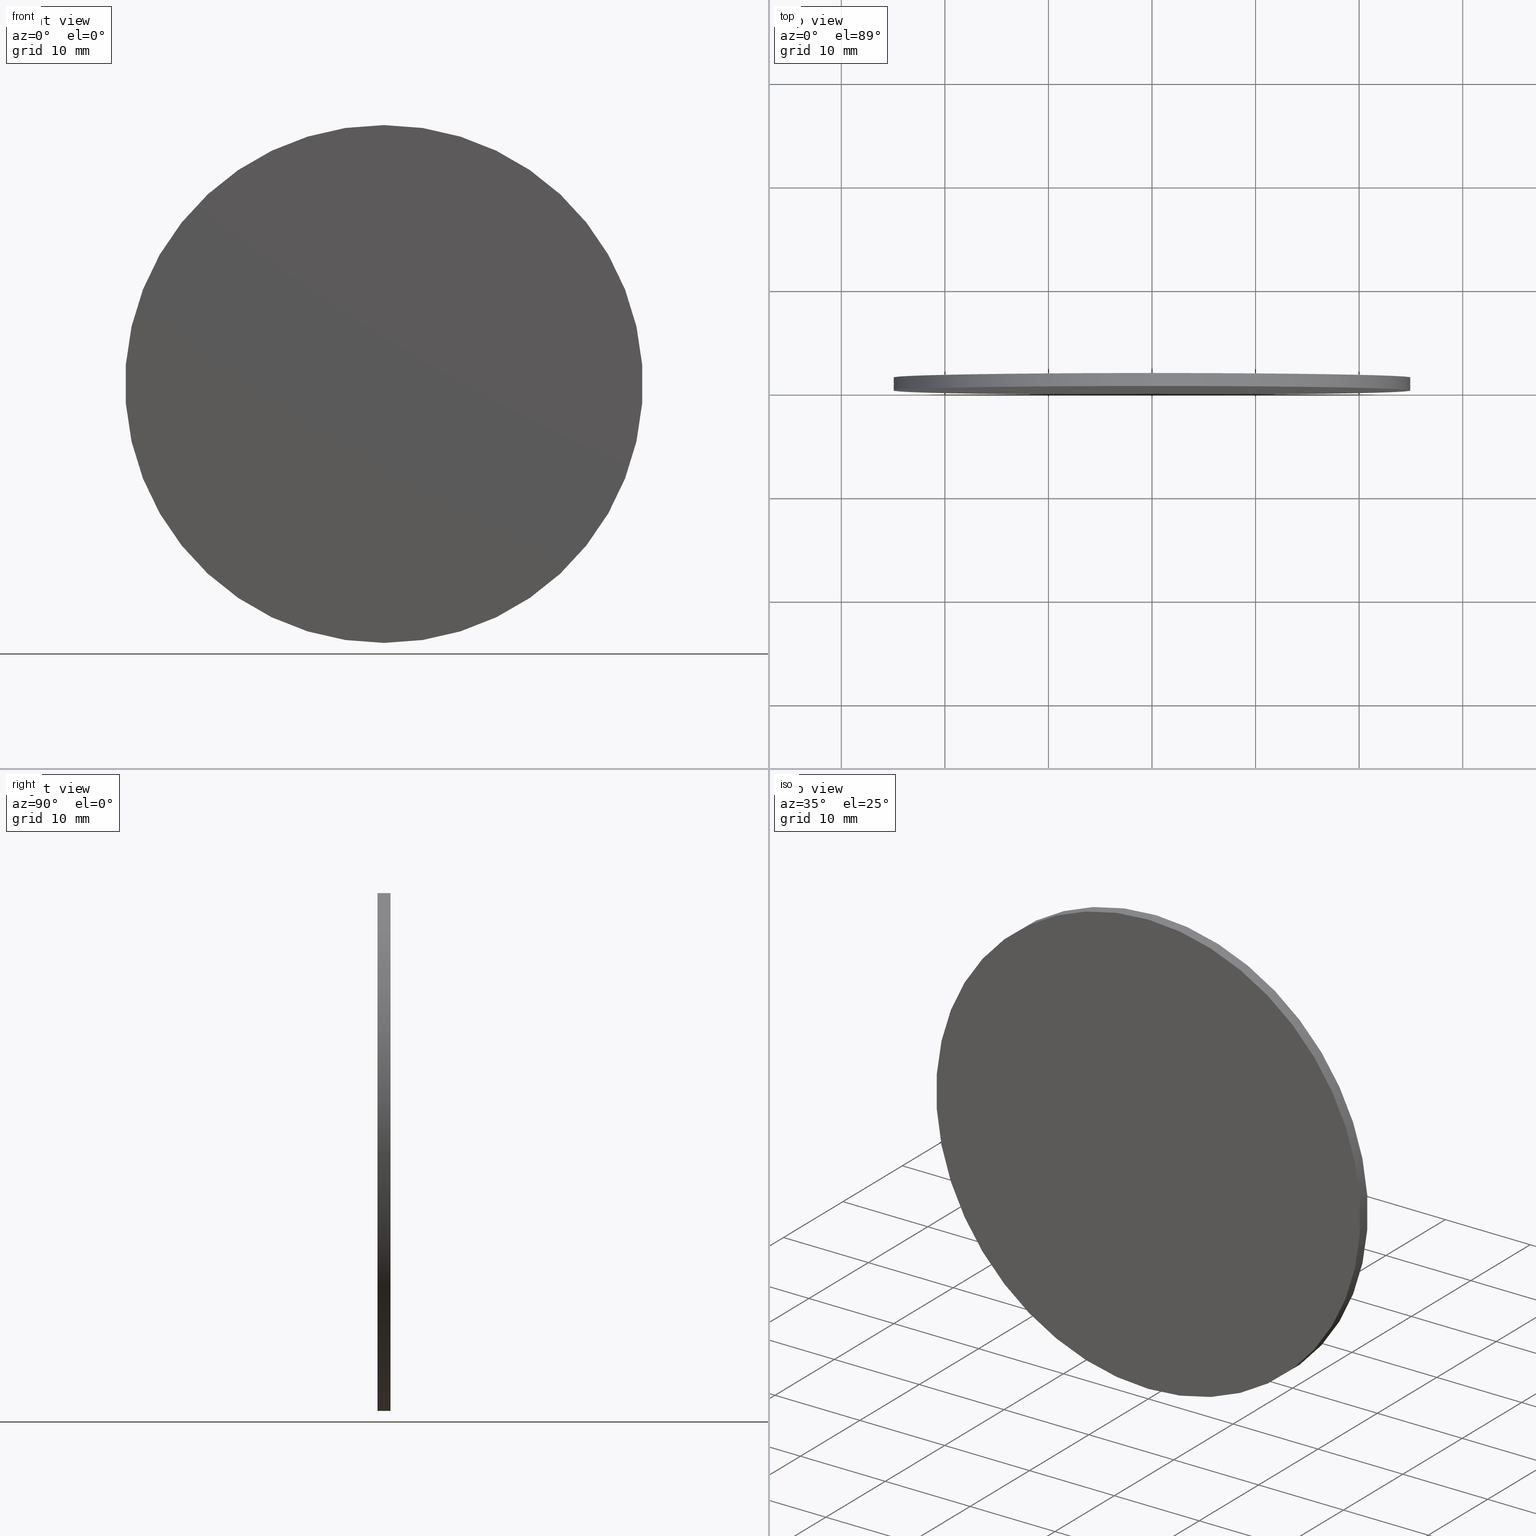
[diagram: canonical four-view strip — front | top / right | iso, engineering-drawing reading convention]
A machine part, canonical four-view strip (front | top / right | iso — engineering-drawing reading convention). The complete STEP part file that produces these views, byte-faithful:
ISO-10303-21;
HEADER;
FILE_DESCRIPTION (( 'STEP AP214' ),
    '1' );
FILE_NAME ('248605.STEP',
    '2019-08-06T05:39:37',
    ( 'user' ),
    ( '΢���й�' ),
    'SwSTEP 2.0',
    'SolidWorks 2016',
    '' );
FILE_SCHEMA (( 'AUTOMOTIVE_DESIGN' ));
ENDSEC;

DATA;
#1 = APPLICATION_CONTEXT ( 'automotive_design' ) ;
#2 = AXIS2_PLACEMENT_3D ( 'NONE', #130, #57, #34 ) ;
#3 = ADVANCED_FACE ( 'NONE', ( #84 ), #107, .T. ) ;
#4 = EDGE_CURVE ( 'NONE', #11, #16, #99, .T. ) ;
#5 = SURFACE_STYLE_FILL_AREA ( #21 ) ;
#6 = PLANE ( 'NONE',  #136 ) ;
#7 = VECTOR ( 'NONE', #109, 1000.000000000000000 ) ;
#8 = PRODUCT_DEFINITION_FORMATION_WITH_SPECIFIED_SOURCE ( '�κ�', '', #47, .NOT_KNOWN. ) ;
#9 = DIRECTION ( 'NONE',  ( 0.0000000000000000000, 0.0000000000000000000, -1.000000000000000000 ) ) ;
#10 = DIRECTION ( 'NONE',  ( 0.0000000000000000000, 0.0000000000000000000, 1.000000000000000000 ) ) ;
#11 = VERTEX_POINT ( 'NONE', #137 ) ;
#12 = AXIS2_PLACEMENT_3D ( 'NONE', #52, #44, #66 ) ;
#13 = CIRCLE ( 'NONE', #14, 25.00000000000000000 ) ;
#14 = AXIS2_PLACEMENT_3D ( 'NONE', #110, #114, #129 ) ;
#15 =( LENGTH_UNIT ( ) NAMED_UNIT ( * ) SI_UNIT ( .MILLI., .METRE. ) );
#16 = VERTEX_POINT ( 'NONE', #30 ) ;
#17 = PRODUCT_RELATED_PRODUCT_CATEGORY ( 'part', '', ( #47 ) ) ;
#18 = PRODUCT_DEFINITION_SHAPE ( 'NONE', 'NONE',  #39 ) ;
#19 = ORIENTED_EDGE ( 'NONE', *, *, #105, .T. ) ;
#20 = ADVANCED_FACE ( 'NONE', ( #82 ), #6, .F. ) ;
#21 = FILL_AREA_STYLE ('',( #90 ) ) ;
#22 = PRODUCT_CONTEXT ( 'NONE', #1, 'mechanical' ) ;
#23 = PLANE ( 'NONE',  #2 ) ;
#24 = MECHANICAL_DESIGN_GEOMETRIC_PRESENTATION_REPRESENTATION (  '', ( #60 ), #123 ) ;
#25 = SURFACE_SIDE_STYLE ('',( #5 ) ) ;
#26 = EDGE_CURVE ( 'NONE', #67, #48, #119, .T. ) ;
#27 = ORIENTED_EDGE ( 'NONE', *, *, #26, .T. ) ;
#28 = MECHANICAL_DESIGN_GEOMETRIC_PRESENTATION_REPRESENTATION (  '', ( #74 ), #45 ) ;
#29 = ADVANCED_FACE ( 'NONE', ( #77 ), #108, .T. ) ;
#30 = CARTESIAN_POINT ( 'NONE',  ( 3.061616997868383000E-015, 0.0000000000000000000, 25.00000000000000000 ) ) ;
#31 = SURFACE_STYLE_FILL_AREA ( #138 ) ;
#32 = DIRECTION ( 'NONE',  ( 0.0000000000000000000, 0.0000000000000000000, -1.000000000000000000 ) ) ;
#33 =( NAMED_UNIT ( * ) PLANE_ANGLE_UNIT ( ) SI_UNIT ( $, .RADIAN. ) );
#34 = DIRECTION ( 'NONE',  ( 0.0000000000000000000, -0.0000000000000000000, 1.000000000000000000 ) ) ;
#35 = VECTOR ( 'NONE', #50, 1000.000000000000000 ) ;
#36 =( NAMED_UNIT ( * ) SI_UNIT ( $, .STERADIAN. ) SOLID_ANGLE_UNIT ( ) );
#37 =( GEOMETRIC_REPRESENTATION_CONTEXT ( 3 ) GLOBAL_UNCERTAINTY_ASSIGNED_CONTEXT ( ( #86 ) ) GLOBAL_UNIT_ASSIGNED_CONTEXT ( ( #15, #58, #61 ) ) REPRESENTATION_CONTEXT ( 'NONE', 'WORKASPACE' ) );
#38 = CARTESIAN_POINT ( 'NONE',  ( 0.0000000000000000000, 0.0000000000000000000, -25.00000000000000000 ) ) ;
#39 = PRODUCT_DEFINITION ( 'δ֪', '', #8, #75 ) ;
#40 = EDGE_LOOP ( 'NONE', ( #42, #125 ) ) ;
#41 =( NAMED_UNIT ( * ) PLANE_ANGLE_UNIT ( ) SI_UNIT ( $, .RADIAN. ) );
#42 = ORIENTED_EDGE ( 'NONE', *, *, #105, .F. ) ;
#43 = DIRECTION ( 'NONE',  ( 0.0000000000000000000, 0.0000000000000000000, 1.000000000000000000 ) ) ;
#44 = DIRECTION ( 'NONE',  ( 0.0000000000000000000, 1.000000000000000000, 0.0000000000000000000 ) ) ;
#45 =( GEOMETRIC_REPRESENTATION_CONTEXT ( 3 ) GLOBAL_UNCERTAINTY_ASSIGNED_CONTEXT ( ( #116 ) ) GLOBAL_UNIT_ASSIGNED_CONTEXT ( ( #53, #33, #36 ) ) REPRESENTATION_CONTEXT ( 'NONE', 'WORKASPACE' ) );
#46 = ORIENTED_EDGE ( 'NONE', *, *, #92, .T. ) ;
#47 = PRODUCT ( '248605', '248605', '', ( #22 ) ) ;
#48 = VERTEX_POINT ( 'NONE', #38 ) ;
#49 = CLOSED_SHELL ( 'NONE', ( #3, #29, #122, #20 ) ) ;
#50 = DIRECTION ( 'NONE',  ( -0.0000000000000000000, -1.000000000000000000, -0.0000000000000000000 ) ) ;
#51 = APPLICATION_CONTEXT ( 'automotive_design' ) ;
#52 = CARTESIAN_POINT ( 'NONE',  ( 0.0000000000000000000, 1.250000000000000000, 0.0000000000000000000 ) ) ;
#53 =( LENGTH_UNIT ( ) NAMED_UNIT ( * ) SI_UNIT ( .MILLI., .METRE. ) );
#54 = SURFACE_STYLE_USAGE ( .BOTH. , #25 ) ;
#55 = CARTESIAN_POINT ( 'NONE',  ( 0.0000000000000000000, 0.0000000000000000000, 0.0000000000000000000 ) ) ;
#56 = ORIENTED_EDGE ( 'NONE', *, *, #68, .T. ) ;
#57 = DIRECTION ( 'NONE',  ( 0.0000000000000000000, 1.000000000000000000, 0.0000000000000000000 ) ) ;
#58 =( NAMED_UNIT ( * ) PLANE_ANGLE_UNIT ( ) SI_UNIT ( $, .RADIAN. ) );
#59 = CARTESIAN_POINT ( 'NONE',  ( 3.061616997868383000E-015, 1.250000000000000000, 25.00000000000000000 ) ) ;
#60 = STYLED_ITEM ( 'NONE', ( #96 ), #102 ) ;
#61 =( NAMED_UNIT ( * ) SI_UNIT ( $, .STERADIAN. ) SOLID_ANGLE_UNIT ( ) );
#62 = AXIS2_PLACEMENT_3D ( 'NONE', #55, #10, #78 ) ;
#63 = CIRCLE ( 'NONE', #80, 25.00000000000000000 ) ;
#64 = SURFACE_STYLE_USAGE ( .BOTH. , #98 ) ;
#65 = COLOUR_RGB ( '',1.000000000000000000, 1.000000000000000000, 1.000000000000000000 ) ;
#66 = DIRECTION ( 'NONE',  ( 0.0000000000000000000, 0.0000000000000000000, 1.000000000000000000 ) ) ;
#67 = VERTEX_POINT ( 'NONE', #126 ) ;
#68 = EDGE_CURVE ( 'NONE', #16, #48, #97, .T. ) ;
#69 = AXIS2_PLACEMENT_3D ( 'NONE', #120, #118, #9 ) ;
#70 = EDGE_LOOP ( 'NONE', ( #72, #46 ) ) ;
#71 = APPLICATION_PROTOCOL_DEFINITION ( 'draft international standard', 'automotive_design', 1998, #51 ) ;
#72 = ORIENTED_EDGE ( 'NONE', *, *, #115, .T. ) ;
#73 = DIRECTION ( 'NONE',  ( -0.0000000000000000000, -1.000000000000000000, -0.0000000000000000000 ) ) ;
#74 = STYLED_ITEM ( 'NONE', ( #139 ), #134 ) ;
#75 = PRODUCT_DEFINITION_CONTEXT ( 'detailed design', #51, 'design' ) ;
#76 = UNCERTAINTY_MEASURE_WITH_UNIT (LENGTH_MEASURE( 1.000000000000000100E-005 ), #79, 'distance_accuracy_value', 'NONE');
#77 = FACE_OUTER_BOUND ( 'NONE', #131, .T. ) ;
#78 = DIRECTION ( 'NONE',  ( 1.000000000000000000, 0.0000000000000000000, 0.0000000000000000000 ) ) ;
#79 =( LENGTH_UNIT ( ) NAMED_UNIT ( * ) SI_UNIT ( .MILLI., .METRE. ) );
#80 = AXIS2_PLACEMENT_3D ( 'NONE', #140, #81, #103 ) ;
#81 = DIRECTION ( 'NONE',  ( 0.0000000000000000000, 1.000000000000000000, 0.0000000000000000000 ) ) ;
#82 = FACE_OUTER_BOUND ( 'NONE', #40, .T. ) ;
#83 = CIRCLE ( 'NONE', #12, 25.00000000000000000 ) ;
#84 = FACE_OUTER_BOUND ( 'NONE', #111, .T. ) ;
#85 = AXIS2_PLACEMENT_3D ( 'NONE', #132, #124, #43 ) ;
#86 = UNCERTAINTY_MEASURE_WITH_UNIT (LENGTH_MEASURE( 1.000000000000000100E-005 ), #15, 'distance_accuracy_value', 'NONE');
#87 = FACE_OUTER_BOUND ( 'NONE', #70, .T. ) ;
#88 = ORIENTED_EDGE ( 'NONE', *, *, #92, .F. ) ;
#89 = CARTESIAN_POINT ( 'NONE',  ( 0.0000000000000000000, 1.250000000000000000, 0.0000000000000000000 ) ) ;
#90 = FILL_AREA_STYLE_COLOUR ( '', #65 ) ;
#91 = ORIENTED_EDGE ( 'NONE', *, *, #4, .T. ) ;
#92 = EDGE_CURVE ( 'NONE', #11, #67, #13, .T. ) ;
#93 = DIRECTION ( 'NONE',  ( 0.0000000000000000000, 1.000000000000000000, 0.0000000000000000000 ) ) ;
#94 = ORIENTED_EDGE ( 'NONE', *, *, #26, .F. ) ;
#95 = PRESENTATION_LAYER_ASSIGNMENT (  '', '', ( #74 ) ) ;
#96 = PRESENTATION_STYLE_ASSIGNMENT (( #64 ) ) ;
#97 = CIRCLE ( 'NONE', #85, 25.00000000000000000 ) ;
#98 = SURFACE_SIDE_STYLE ('',( #31 ) ) ;
#99 = LINE ( 'NONE', #59, #35 ) ;
#100 = CARTESIAN_POINT ( 'NONE',  ( 0.0000000000000000000, 0.0000000000000000000, 0.0000000000000000000 ) ) ;
#101 = APPLICATION_PROTOCOL_DEFINITION ( 'draft international standard', 'automotive_design', 1998, #1 ) ;
#102 = ADVANCED_BREP_SHAPE_REPRESENTATION ( '248605', ( #134, #62 ), #37 ) ;
#103 = DIRECTION ( 'NONE',  ( 0.0000000000000000000, 0.0000000000000000000, 1.000000000000000000 ) ) ;
#104 = PRESENTATION_LAYER_ASSIGNMENT (  '', '', ( #60 ) ) ;
#105 = EDGE_CURVE ( 'NONE', #48, #16, #63, .T. ) ;
#106 = DIRECTION ( 'NONE',  ( 0.0000000000000000000, -0.0000000000000000000, 1.000000000000000000 ) ) ;
#107 = CYLINDRICAL_SURFACE ( 'NONE', #69, 25.00000000000000000 ) ;
#108 = CYLINDRICAL_SURFACE ( 'NONE', #112, 25.00000000000000000 ) ;
#109 = DIRECTION ( 'NONE',  ( -0.0000000000000000000, -1.000000000000000000, -0.0000000000000000000 ) ) ;
#110 = CARTESIAN_POINT ( 'NONE',  ( 0.0000000000000000000, 1.250000000000000000, 0.0000000000000000000 ) ) ;
#111 = EDGE_LOOP ( 'NONE', ( #88, #91, #56, #94 ) ) ;
#112 = AXIS2_PLACEMENT_3D ( 'NONE', #89, #73, #32 ) ;
#113 = CARTESIAN_POINT ( 'NONE',  ( 0.0000000000000000000, 1.250000000000000000, -25.00000000000000000 ) ) ;
#114 = DIRECTION ( 'NONE',  ( 0.0000000000000000000, 1.000000000000000000, 0.0000000000000000000 ) ) ;
#115 = EDGE_CURVE ( 'NONE', #67, #11, #83, .T. ) ;
#116 = UNCERTAINTY_MEASURE_WITH_UNIT (LENGTH_MEASURE( 1.000000000000000100E-005 ), #53, 'distance_accuracy_value', 'NONE');
#117 = ORIENTED_EDGE ( 'NONE', *, *, #4, .F. ) ;
#118 = DIRECTION ( 'NONE',  ( -0.0000000000000000000, -1.000000000000000000, -0.0000000000000000000 ) ) ;
#119 = LINE ( 'NONE', #113, #7 ) ;
#120 = CARTESIAN_POINT ( 'NONE',  ( 0.0000000000000000000, 1.250000000000000000, 0.0000000000000000000 ) ) ;
#121 = COLOUR_RGB ( '',1.000000000000000000, 1.000000000000000000, 1.000000000000000000 ) ;
#122 = ADVANCED_FACE ( 'NONE', ( #87 ), #23, .T. ) ;
#123 =( GEOMETRIC_REPRESENTATION_CONTEXT ( 3 ) GLOBAL_UNCERTAINTY_ASSIGNED_CONTEXT ( ( #76 ) ) GLOBAL_UNIT_ASSIGNED_CONTEXT ( ( #79, #41, #127 ) ) REPRESENTATION_CONTEXT ( 'NONE', 'WORKASPACE' ) );
#124 = DIRECTION ( 'NONE',  ( 0.0000000000000000000, 1.000000000000000000, 0.0000000000000000000 ) ) ;
#125 = ORIENTED_EDGE ( 'NONE', *, *, #68, .F. ) ;
#126 = CARTESIAN_POINT ( 'NONE',  ( 0.0000000000000000000, 1.250000000000000000, -25.00000000000000000 ) ) ;
#127 =( NAMED_UNIT ( * ) SI_UNIT ( $, .STERADIAN. ) SOLID_ANGLE_UNIT ( ) );
#128 = SHAPE_DEFINITION_REPRESENTATION ( #18, #102 ) ;
#129 = DIRECTION ( 'NONE',  ( 0.0000000000000000000, 0.0000000000000000000, 1.000000000000000000 ) ) ;
#130 = CARTESIAN_POINT ( 'NONE',  ( 0.0000000000000000000, 1.250000000000000000, 0.0000000000000000000 ) ) ;
#131 = EDGE_LOOP ( 'NONE', ( #117, #135, #27, #19 ) ) ;
#132 = CARTESIAN_POINT ( 'NONE',  ( 0.0000000000000000000, 0.0000000000000000000, 0.0000000000000000000 ) ) ;
#133 = FILL_AREA_STYLE_COLOUR ( '', #121 ) ;
#134 = MANIFOLD_SOLID_BREP ( '͹̨-����1', #49 ) ;
#135 = ORIENTED_EDGE ( 'NONE', *, *, #115, .F. ) ;
#136 = AXIS2_PLACEMENT_3D ( 'NONE', #100, #93, #106 ) ;
#137 = CARTESIAN_POINT ( 'NONE',  ( 3.061616997868383000E-015, 1.250000000000000000, 25.00000000000000000 ) ) ;
#138 = FILL_AREA_STYLE ('',( #133 ) ) ;
#139 = PRESENTATION_STYLE_ASSIGNMENT (( #54 ) ) ;
#140 = CARTESIAN_POINT ( 'NONE',  ( 0.0000000000000000000, 0.0000000000000000000, 0.0000000000000000000 ) ) ;
ENDSEC;
END-ISO-10303-21;
